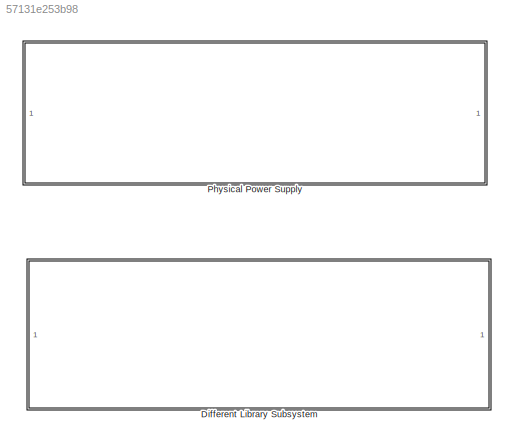
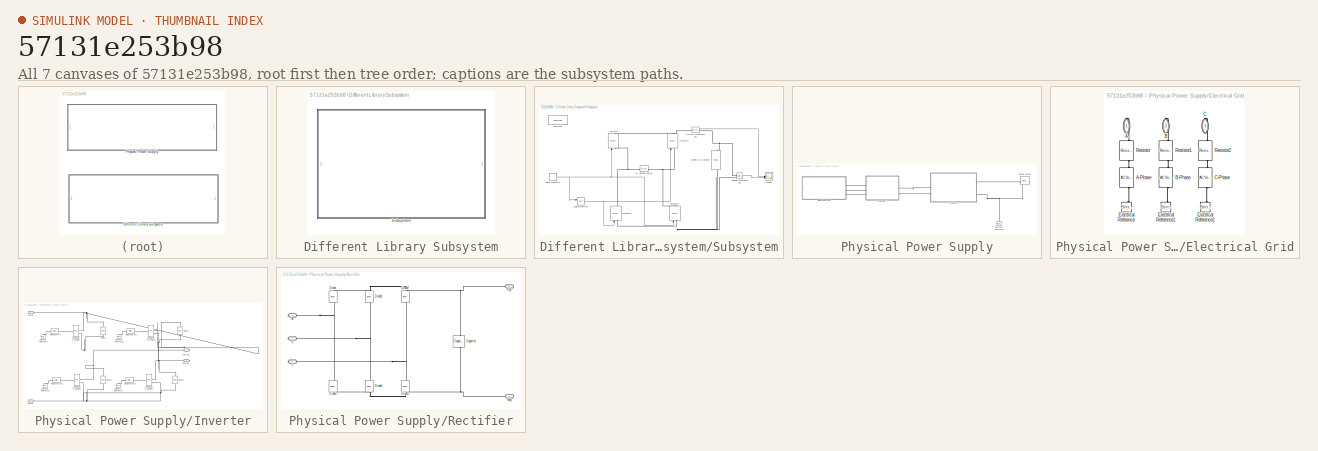
[diagram: thumbnail index - all 7 canvases of the model, root first then tree order]
MODEL slx_57131e253b98
KIND model
CONFIG AbsTol = auto
CONFIG EnableMultiTasking = off
CONFIG FixedStep = auto
CONFIG MaxStep = auto
CONFIG MinStep = auto
CONFIG RelTol = 1e-3
CONFIG SampleTimeConstraint = Unconstrained
CONFIG SolverName = VariableStepAuto
CONFIG StartTime = 0.0
CONFIG StopTime = 10
BLOCK [SubSystem] Different Library Subsystem
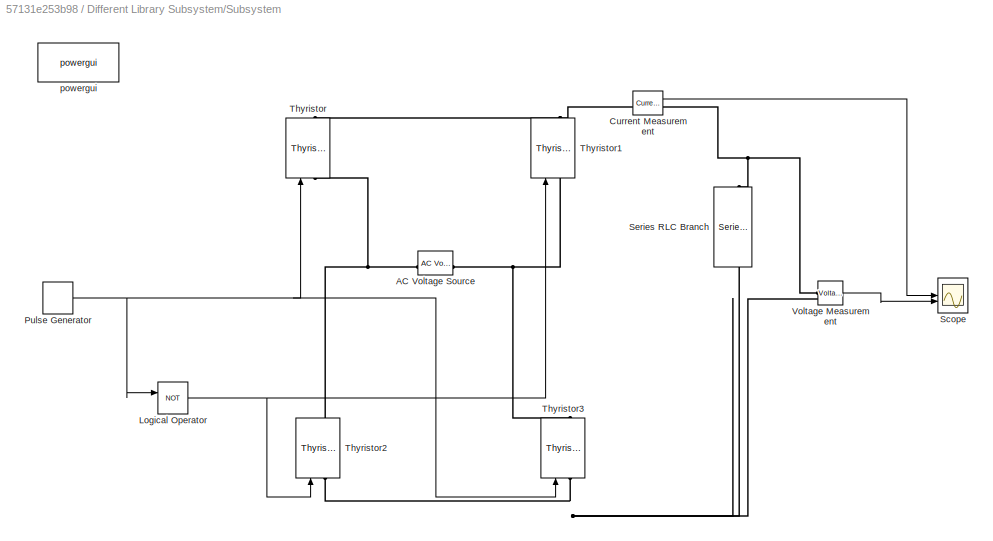
BLOCK [SubSystem] Different Library Subsystem/Subsystem
BLOCK [Reference] Different Library Subsystem/Subsystem/AC Voltage Source  REF=spsACVoltageSourceLib/AC Voltage Source
  LibrarySourceBlock = sps_lib/Sources/AC Voltage Source
  NameLocation = right
  SourceBlock = spsACVoltageSourceLib/AC Voltage Source
  SourceType = AC Voltage Source
BLOCK [Reference] Different Library Subsystem/Subsystem/Current Measurement  REF=spsCurrentMeasurementLib/Current Measurement
  LibrarySourceBlock = sps_lib/Sensors and Measurements/Current Measurement
  SourceBlock = spsCurrentMeasurementLib/Current Measurement
  SourceType = Current Measurement
  UserDataPersistent = on
BLOCK [Logic] Different Library Subsystem/Subsystem/Logical Operator
  AllPortsSameDT = off
  Operator = NOT
  OutDataTypeStr = boolean
BLOCK [DiscretePulseGenerator] Different Library Subsystem/Subsystem/Pulse Generator
  Period = 0.02
  PulseType = Time based
  PulseWidth = 50
BLOCK [Scope] Different Library Subsystem/Subsystem/Scope
  Floating = off
  NumInputPorts = 2
  ScopeSpecificationString = Simulink.scopes.TimeScopeBlockCfg('CurrentConfiguration', extmgr.ConfigurationSet(extmgr.Configuration('Core','General UI',true),extmgr.Configuration('Core','Source UI',true),extmgr.Configuration('Sources','WiredSimulink',true,'DataLoggingVariableName','ScopeData1'),extmgr.Configuration('Visuals','Time Domain',true,'SerializedDisplays',{struct('MinYLimReal','-25.8','MaxYLimReal','232.2','YLabelRea...<+2191ch>
BLOCK [Reference] Different Library Subsystem/Subsystem/Series RLC Branch  REF=spsSeriesRLCBranchLib/Series RLC Branch
  LibrarySourceBlock = sps_lib/Passives/Series RLC Branch
  NameLocation = left
  SourceBlock = spsSeriesRLCBranchLib/Series RLC Branch
  SourceType = Series RLC Branch
BLOCK [Reference] Different Library Subsystem/Subsystem/Thyristor  REF=spsThyristorLib/Thyristor
  LibrarySourceBlock = sps_lib/Power Electronics/Thyristor
  NameLocation = right
  SourceBlock = spsThyristorLib/Thyristor
  SourceType = Thyristor
BLOCK [Reference] Different Library Subsystem/Subsystem/Thyristor1  REF=spsThyristorLib/Thyristor
  LibrarySourceBlock = sps_lib/Power Electronics/Thyristor
  NameLocation = right
  SourceBlock = spsThyristorLib/Thyristor
  SourceType = Thyristor
BLOCK [Reference] Different Library Subsystem/Subsystem/Thyristor2  REF=spsThyristorLib/Thyristor
  LibrarySourceBlock = sps_lib/Power Electronics/Thyristor
  NameLocation = right
  SourceBlock = spsThyristorLib/Thyristor
  SourceType = Thyristor
BLOCK [Reference] Different Library Subsystem/Subsystem/Thyristor3  REF=spsThyristorLib/Thyristor
  LibrarySourceBlock = sps_lib/Power Electronics/Thyristor
  NameLocation = right
  SourceBlock = spsThyristorLib/Thyristor
  SourceType = Thyristor
BLOCK [Reference] Different Library Subsystem/Subsystem/Voltage Measurement  REF=spsVoltageMeasurementLib/Voltage Measurement
  LibrarySourceBlock = sps_lib/Sensors and Measurements/Voltage Measurement
  SourceBlock = spsVoltageMeasurementLib/Voltage Measurement
  SourceType = Voltage Measurement
  UserDataPersistent = on
BLOCK [Reference] Different Library Subsystem/Subsystem/powergui  REF=sps_lib/powergui
  Priority = 1
  SourceBlock = sps_lib/powergui
  SourceType = PSB option menu block
BLOCK [SubSystem] Physical Power Supply
BLOCK [SubSystem] Physical Power Supply/Electrical Grid
BLOCK [PMIOPort] Physical Power Supply/Electrical Grid/A
  NameLocation = left
  Side = Right
BLOCK [Reference] Physical Power Supply/Electrical Grid/A-Phase  REF=fl_lib/Electrical/Electrical Sources/AC Voltage Source
  NameLocation = right
  SourceBlock = fl_lib/Electrical/Electrical Sources/AC Voltage Source
  SourceType = AC Voltage Source
BLOCK [PMIOPort] Physical Power Supply/Electrical Grid/B
  NameLocation = left
  Port = 2
  Side = Right
BLOCK [Reference] Physical Power Supply/Electrical Grid/B-Phase  REF=fl_lib/Electrical/Electrical Sources/AC Voltage Source
  NameLocation = right
  SourceBlock = fl_lib/Electrical/Electrical Sources/AC Voltage Source
  SourceType = AC Voltage Source
BLOCK [PMIOPort] Physical Power Supply/Electrical Grid/C
  NameLocation = left
  Port = 3
  Side = Right
BLOCK [Reference] Physical Power Supply/Electrical Grid/C-Phase  REF=fl_lib/Electrical/Electrical Sources/AC Voltage Source
  NameLocation = right
  SourceBlock = fl_lib/Electrical/Electrical Sources/AC Voltage Source
  SourceType = AC Voltage Source
BLOCK [Reference] Physical Power Supply/Electrical Grid/Electrical Reference  REF=fl_lib/Electrical/Electrical Elements/Electrical Reference
  NameLocation = right
  SourceBlock = fl_lib/Electrical/Electrical Elements/Electrical Reference
  SourceType = Electrical Reference
BLOCK [Reference] Physical Power Supply/Electrical Grid/Electrical Reference1  REF=fl_lib/Electrical/Electrical Elements/Electrical Reference
  NameLocation = right
  SourceBlock = fl_lib/Electrical/Electrical Elements/Electrical Reference
  SourceType = Electrical Reference
BLOCK [Reference] Physical Power Supply/Electrical Grid/Electrical Reference2  REF=fl_lib/Electrical/Electrical Elements/Electrical Reference
  NameLocation = right
  SourceBlock = fl_lib/Electrical/Electrical Elements/Electrical Reference
  SourceType = Electrical Reference
BLOCK [Reference] Physical Power Supply/Electrical Grid/Resistor  REF=fl_lib/Electrical/Electrical Elements/Resistor
  NameLocation = left
  SourceBlock = fl_lib/Electrical/Electrical Elements/Resistor
  SourceType = Resistor
BLOCK [Reference] Physical Power Supply/Electrical Grid/Resistor1  REF=fl_lib/Electrical/Electrical Elements/Resistor
  NameLocation = left
  SourceBlock = fl_lib/Electrical/Electrical Elements/Resistor
  SourceType = Resistor
BLOCK [Reference] Physical Power Supply/Electrical Grid/Resistor2  REF=fl_lib/Electrical/Electrical Elements/Resistor
  NameLocation = left
  SourceBlock = fl_lib/Electrical/Electrical Elements/Resistor
  SourceType = Resistor
BLOCK [Reference] Physical Power Supply/Electrical Reference  REF=fl_lib/Electrical/Electrical Elements/Electrical Reference
  NameLocation = right
  SourceBlock = fl_lib/Electrical/Electrical Elements/Electrical Reference
  SourceType = Electrical Reference
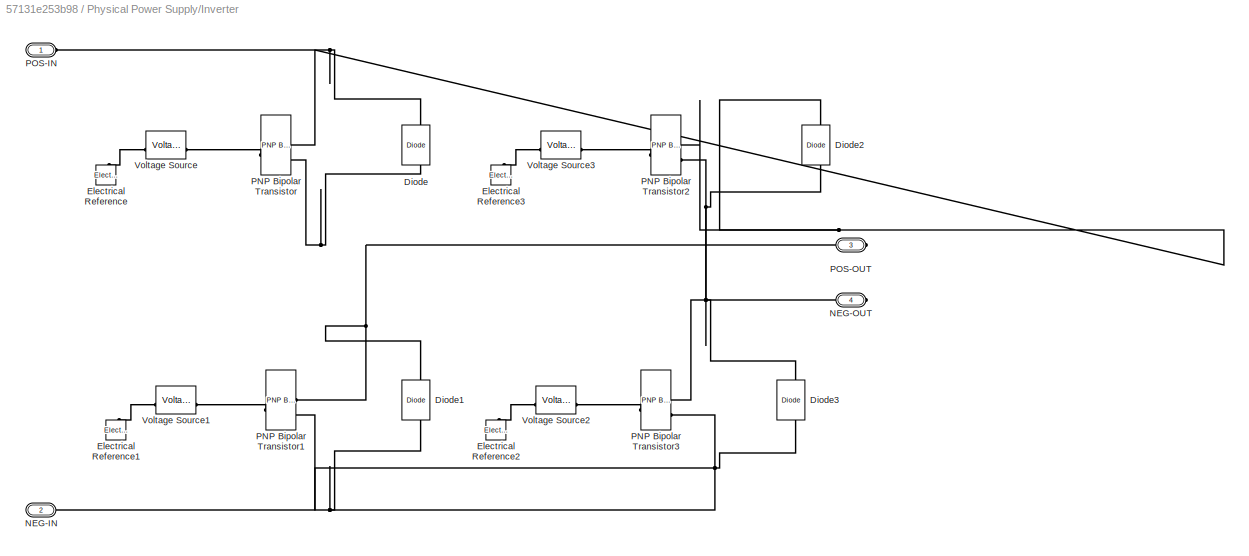
BLOCK [SubSystem] Physical Power Supply/Inverter
  NameLocation = top
BLOCK [Reference] Physical Power Supply/Inverter/Diode  REF=fl_lib/Electrical/Electrical Elements/Diode
  NameLocation = left
  SourceBlock = fl_lib/Electrical/Electrical Elements/Diode
  SourceType = Diode
BLOCK [Reference] Physical Power Supply/Inverter/Diode1  REF=fl_lib/Electrical/Electrical Elements/Diode
  NameLocation = left
  SourceBlock = fl_lib/Electrical/Electrical Elements/Diode
  SourceType = Diode
BLOCK [Reference] Physical Power Supply/Inverter/Diode2  REF=fl_lib/Electrical/Electrical Elements/Diode
  NameLocation = left
  SourceBlock = fl_lib/Electrical/Electrical Elements/Diode
  SourceType = Diode
BLOCK [Reference] Physical Power Supply/Inverter/Diode3  REF=fl_lib/Electrical/Electrical Elements/Diode
  NameLocation = left
  SourceBlock = fl_lib/Electrical/Electrical Elements/Diode
  SourceType = Diode
BLOCK [Reference] Physical Power Supply/Inverter/Electrical Reference  REF=fl_lib/Electrical/Electrical Elements/Electrical Reference
  LibrarySourceBlock = ee_lib/Connectors &\nReferences/Electrical Reference
  NameLocation = right
  SourceBlock = fl_lib/Electrical/Electrical Elements/Electrical Reference
  SourceType = Electrical Reference
BLOCK [Reference] Physical Power Supply/Inverter/Electrical Reference1  REF=fl_lib/Electrical/Electrical Elements/Electrical Reference
  LibrarySourceBlock = ee_lib/Connectors &\nReferences/Electrical Reference
  NameLocation = right
  SourceBlock = fl_lib/Electrical/Electrical Elements/Electrical Reference
  SourceType = Electrical Reference
BLOCK [Reference] Physical Power Supply/Inverter/Electrical Reference2  REF=fl_lib/Electrical/Electrical Elements/Electrical Reference
  LibrarySourceBlock = ee_lib/Connectors &\nReferences/Electrical Reference
  NameLocation = right
  SourceBlock = fl_lib/Electrical/Electrical Elements/Electrical Reference
  SourceType = Electrical Reference
BLOCK [Reference] Physical Power Supply/Inverter/Electrical Reference3  REF=fl_lib/Electrical/Electrical Elements/Electrical Reference
  LibrarySourceBlock = ee_lib/Connectors &\nReferences/Electrical Reference
  NameLocation = right
  SourceBlock = fl_lib/Electrical/Electrical Elements/Electrical Reference
  SourceType = Electrical Reference
BLOCK [PMIOPort] Physical Power Supply/Inverter/NEG-IN
  Port = 2
  Side = Left
BLOCK [PMIOPort] Physical Power Supply/Inverter/NEG-OUT
  Port = 4
  Side = Right
BLOCK [Reference] Physical Power Supply/Inverter/PNP Bipolar Transistor  REF=ee_lib/Semiconductors &
Converters/PNP Bipolar
Transistor
  SourceBlock = ee_lib/Semiconductors &\nConverters/PNP Bipolar\nTransistor
  SourceType = PNP Bipolar\nTransistor
BLOCK [Reference] Physical Power Supply/Inverter/PNP Bipolar Transistor1  REF=ee_lib/Semiconductors &
Converters/PNP Bipolar
Transistor
  SourceBlock = ee_lib/Semiconductors &\nConverters/PNP Bipolar\nTransistor
  SourceType = PNP Bipolar\nTransistor
BLOCK [Reference] Physical Power Supply/Inverter/PNP Bipolar Transistor2  REF=ee_lib/Semiconductors &
Converters/PNP Bipolar
Transistor
  SourceBlock = ee_lib/Semiconductors &\nConverters/PNP Bipolar\nTransistor
  SourceType = PNP Bipolar\nTransistor
BLOCK [Reference] Physical Power Supply/Inverter/PNP Bipolar Transistor3  REF=ee_lib/Semiconductors &
Converters/PNP Bipolar
Transistor
  SourceBlock = ee_lib/Semiconductors &\nConverters/PNP Bipolar\nTransistor
  SourceType = PNP Bipolar\nTransistor
BLOCK [PMIOPort] Physical Power Supply/Inverter/POS-IN
  Side = Left
BLOCK [PMIOPort] Physical Power Supply/Inverter/POS-OUT
  Port = 3
  Side = Right
BLOCK [Reference] Physical Power Supply/Inverter/Voltage Source  REF=ee_lib/Sources/Voltage Source
  SourceBlock = ee_lib/Sources/Voltage Source
  SourceType = Voltage Source
BLOCK [Reference] Physical Power Supply/Inverter/Voltage Source1  REF=ee_lib/Sources/Voltage Source
  SourceBlock = ee_lib/Sources/Voltage Source
  SourceType = Voltage Source
BLOCK [Reference] Physical Power Supply/Inverter/Voltage Source2  REF=ee_lib/Sources/Voltage Source
  SourceBlock = ee_lib/Sources/Voltage Source
  SourceType = Voltage Source
BLOCK [Reference] Physical Power Supply/Inverter/Voltage Source3  REF=ee_lib/Sources/Voltage Source
  SourceBlock = ee_lib/Sources/Voltage Source
  SourceType = Voltage Source
BLOCK [SubSystem] Physical Power Supply/Rectifier
BLOCK [PMIOPort] Physical Power Supply/Rectifier/A
  NameLocation = top
  Side = Right
BLOCK [PMIOPort] Physical Power Supply/Rectifier/B
  NameLocation = top
  Port = 2
  Side = Right
BLOCK [PMIOPort] Physical Power Supply/Rectifier/C
  NameLocation = top
  Port = 3
  Side = Right
BLOCK [Reference] Physical Power Supply/Rectifier/Capacitor  REF=fl_lib/Electrical/Electrical Elements/Capacitor
  NameLocation = left
  SourceBlock = fl_lib/Electrical/Electrical Elements/Capacitor
  SourceType = Capacitor
BLOCK [Reference] Physical Power Supply/Rectifier/Diode  REF=fl_lib/Electrical/Electrical Elements/Diode
  NameLocation = right
  SourceBlock = fl_lib/Electrical/Electrical Elements/Diode
  SourceType = Diode
BLOCK [Reference] Physical Power Supply/Rectifier/Diode1  REF=fl_lib/Electrical/Electrical Elements/Diode
  NameLocation = right
  SourceBlock = fl_lib/Electrical/Electrical Elements/Diode
  SourceType = Diode
BLOCK [Reference] Physical Power Supply/Rectifier/Diode2  REF=fl_lib/Electrical/Electrical Elements/Diode
  NameLocation = right
  SourceBlock = fl_lib/Electrical/Electrical Elements/Diode
  SourceType = Diode
BLOCK [Reference] Physical Power Supply/Rectifier/Diode3  REF=fl_lib/Electrical/Electrical Elements/Diode
  NameLocation = right
  SourceBlock = fl_lib/Electrical/Electrical Elements/Diode
  SourceType = Diode
BLOCK [Reference] Physical Power Supply/Rectifier/Diode4  REF=fl_lib/Electrical/Electrical Elements/Diode
  NameLocation = right
  SourceBlock = fl_lib/Electrical/Electrical Elements/Diode
  SourceType = Diode
BLOCK [Reference] Physical Power Supply/Rectifier/Diode5  REF=fl_lib/Electrical/Electrical Elements/Diode
  NameLocation = right
  SourceBlock = fl_lib/Electrical/Electrical Elements/Diode
  SourceType = Diode
BLOCK [PMIOPort] Physical Power Supply/Rectifier/Neg
  Port = 5
  Side = Left
BLOCK [PMIOPort] Physical Power Supply/Rectifier/Pos
  Port = 4
  Side = Left
BLOCK [Reference] Physical Power Supply/Voltage Sensor  REF=fl_lib/Electrical/Electrical Sensors/Voltage Sensor
  NameLocation = top
  SourceBlock = fl_lib/Electrical/Electrical Sensors/Voltage Sensor
  SourceType = Voltage Sensor
LINE Different Library Subsystem/Subsystem/Current Measurement:1 -> Different Library Subsystem/Subsystem/Scope:1
NET Different Library Subsystem/Subsystem/Logical Operator:1 -> Different Library Subsystem/Subsystem/Thyristor1:1, Different Library Subsystem/Subsystem/Thyristor2:1
NET Different Library Subsystem/Subsystem/Pulse Generator:1 -> Different Library Subsystem/Subsystem/Logical Operator:1, Different Library Subsystem/Subsystem/Thyristor3:1, Different Library Subsystem/Subsystem/Thyristor:1
LINE Different Library Subsystem/Subsystem/Voltage Measurement:1 -> Different Library Subsystem/Subsystem/Scope:2
PNET net1: Different Library Subsystem/Subsystem/AC Voltage Source:LConn1 -- Different Library Subsystem/Subsystem/Thyristor1:LConn1 -- Different Library Subsystem/Subsystem/Thyristor3:RConn1
PNET net2: Different Library Subsystem/Subsystem/AC Voltage Source:RConn1 -- Different Library Subsystem/Subsystem/Thyristor2:RConn1 -- Different Library Subsystem/Subsystem/Thyristor:LConn1
PNET net3: Different Library Subsystem/Subsystem/Current Measurement:LConn1 -- Different Library Subsystem/Subsystem/Thyristor1:RConn1 -- Different Library Subsystem/Subsystem/Thyristor:RConn1
PNET net4: Different Library Subsystem/Subsystem/Current Measurement:RConn1 -- Different Library Subsystem/Subsystem/Series RLC Branch:LConn1 -- Different Library Subsystem/Subsystem/Voltage Measurement:LConn1
PNET net5: Different Library Subsystem/Subsystem/Series RLC Branch:RConn1 -- Different Library Subsystem/Subsystem/Thyristor2:LConn1 -- Different Library Subsystem/Subsystem/Thyristor3:LConn1 -- Different Library Subsystem/Subsystem/Voltage Measurement:LConn2
PLINE Physical Power Supply/Electrical Grid/A-Phase:LConn1 -- Physical Power Supply/Electrical Grid/Resistor:RConn1
PLINE Physical Power Supply/Electrical Grid/A-Phase:RConn1 -- Physical Power Supply/Electrical Grid/Electrical Reference:LConn1
PLINE Physical Power Supply/Electrical Grid/A:RConn1 -- Physical Power Supply/Electrical Grid/Resistor:LConn1
PLINE Physical Power Supply/Electrical Grid/B-Phase:LConn1 -- Physical Power Supply/Electrical Grid/Resistor1:RConn1
PLINE Physical Power Supply/Electrical Grid/B-Phase:RConn1 -- Physical Power Supply/Electrical Grid/Electrical Reference1:LConn1
PLINE Physical Power Supply/Electrical Grid/B:RConn1 -- Physical Power Supply/Electrical Grid/Resistor1:LConn1
PLINE Physical Power Supply/Electrical Grid/C-Phase:LConn1 -- Physical Power Supply/Electrical Grid/Resistor2:RConn1
PLINE Physical Power Supply/Electrical Grid/C-Phase:RConn1 -- Physical Power Supply/Electrical Grid/Electrical Reference2:LConn1
PLINE Physical Power Supply/Electrical Grid/C:RConn1 -- Physical Power Supply/Electrical Grid/Resistor2:LConn1
PLINE Physical Power Supply/Electrical Grid:RConn1 -- Physical Power Supply/Rectifier:RConn1
PLINE Physical Power Supply/Electrical Grid:RConn2 -- Physical Power Supply/Rectifier:RConn2
PLINE Physical Power Supply/Electrical Grid:RConn3 -- Physical Power Supply/Rectifier:RConn3
PNET net6: Physical Power Supply/Electrical Reference:LConn1 -- Physical Power Supply/Inverter:RConn2 -- Physical Power Supply/Voltage Sensor:RConn2
PNET net7: Physical Power Supply/Inverter/Diode1:LConn1 -- Physical Power Supply/Inverter/Diode:RConn1 -- Physical Power Supply/Inverter/PNP Bipolar Transistor1:RConn1 -- Physical Power Supply/Inverter/PNP Bipolar Transistor:RConn2 -- Physical Power Supply/Inverter/POS-OUT:RConn1
PNET net8: Physical Power Supply/Inverter/Diode1:RConn1 -- Physical Power Supply/Inverter/Diode3:RConn1 -- Physical Power Supply/Inverter/NEG-IN:RConn1 -- Physical Power Supply/Inverter/PNP Bipolar Transistor1:RConn2 -- Physical Power Supply/Inverter/PNP Bipolar Transistor3:RConn2
PNET net9: Physical Power Supply/Inverter/Diode2:LConn1 -- Physical Power Supply/Inverter/Diode:LConn1 -- Physical Power Supply/Inverter/PNP Bipolar Transistor2:RConn1 -- Physical Power Supply/Inverter/PNP Bipolar Transistor:RConn1 -- Physical Power Supply/Inverter/POS-IN:RConn1
PNET net10: Physical Power Supply/Inverter/Diode2:RConn1 -- Physical Power Supply/Inverter/Diode3:LConn1 -- Physical Power Supply/Inverter/NEG-OUT:RConn1 -- Physical Power Supply/Inverter/PNP Bipolar Transistor2:RConn2 -- Physical Power Supply/Inverter/PNP Bipolar Transistor3:RConn1
PLINE Physical Power Supply/Inverter/Electrical Reference1:LConn1 -- Physical Power Supply/Inverter/Voltage Source1:RConn1
PLINE Physical Power Supply/Inverter/Electrical Reference2:LConn1 -- Physical Power Supply/Inverter/Voltage Source2:RConn1
PLINE Physical Power Supply/Inverter/Electrical Reference3:LConn1 -- Physical Power Supply/Inverter/Voltage Source3:RConn1
PLINE Physical Power Supply/Inverter/Electrical Reference:LConn1 -- Physical Power Supply/Inverter/Voltage Source:RConn1
PLINE Physical Power Supply/Inverter/PNP Bipolar Transistor1:LConn1 -- Physical Power Supply/Inverter/Voltage Source1:LConn1
PLINE Physical Power Supply/Inverter/PNP Bipolar Transistor2:LConn1 -- Physical Power Supply/Inverter/Voltage Source3:LConn1
PLINE Physical Power Supply/Inverter/PNP Bipolar Transistor3:LConn1 -- Physical Power Supply/Inverter/Voltage Source2:LConn1
PLINE Physical Power Supply/Inverter/PNP Bipolar Transistor:LConn1 -- Physical Power Supply/Inverter/Voltage Source:LConn1
PLINE Physical Power Supply/Inverter:LConn1 -- Physical Power Supply/Rectifier:LConn1
PLINE Physical Power Supply/Inverter:LConn2 -- Physical Power Supply/Rectifier:LConn2
PLINE Physical Power Supply/Inverter:RConn1 -- Physical Power Supply/Voltage Sensor:LConn1
PNET net11: Physical Power Supply/Rectifier/A:RConn1 -- Physical Power Supply/Rectifier/Diode3:RConn1 -- Physical Power Supply/Rectifier/Diode:LConn1
PNET net12: Physical Power Supply/Rectifier/B:RConn1 -- Physical Power Supply/Rectifier/Diode1:LConn1 -- Physical Power Supply/Rectifier/Diode4:RConn1
PNET net13: Physical Power Supply/Rectifier/C:RConn1 -- Physical Power Supply/Rectifier/Diode2:LConn1 -- Physical Power Supply/Rectifier/Diode5:RConn1
PNET net14: Physical Power Supply/Rectifier/Capacitor:LConn1 -- Physical Power Supply/Rectifier/Diode1:RConn1 -- Physical Power Supply/Rectifier/Diode2:RConn1 -- Physical Power Supply/Rectifier/Diode:RConn1 -- Physical Power Supply/Rectifier/Pos:RConn1
PNET net15: Physical Power Supply/Rectifier/Capacitor:RConn1 -- Physical Power Supply/Rectifier/Diode3:LConn1 -- Physical Power Supply/Rectifier/Diode4:LConn1 -- Physical Power Supply/Rectifier/Diode5:LConn1 -- Physical Power Supply/Rectifier/Neg:RConn1
note: NET lines group one-source signal fan-out (src -> all destinations, sorted); 1:1 wires keep LINE; PNET lines group multi-terminal physical nets as a canonical sorted terminal list (undirected conserving connections); 2-terminal nets keep the pairwise PLINE form
